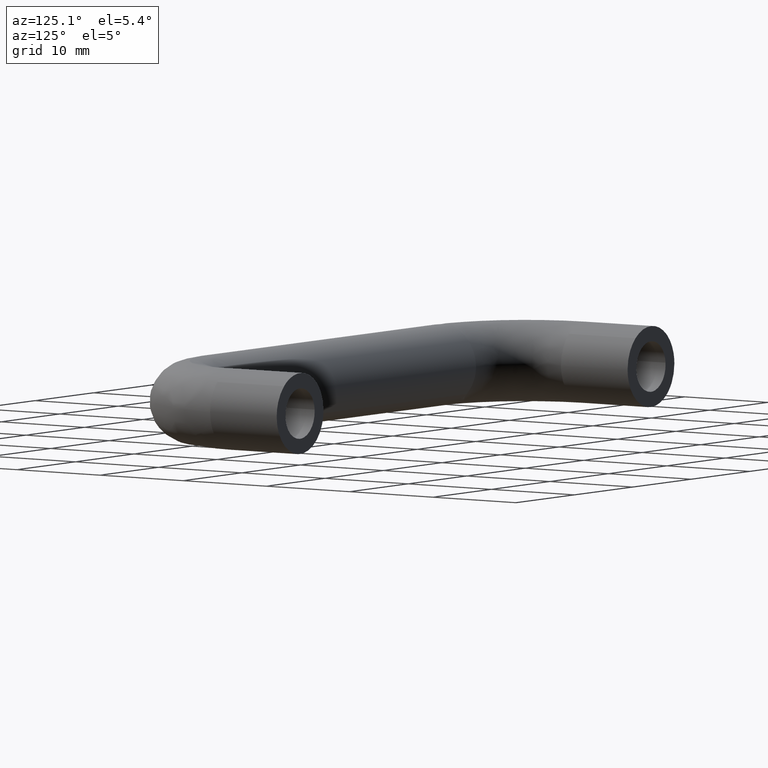
[diagram: clean part render]
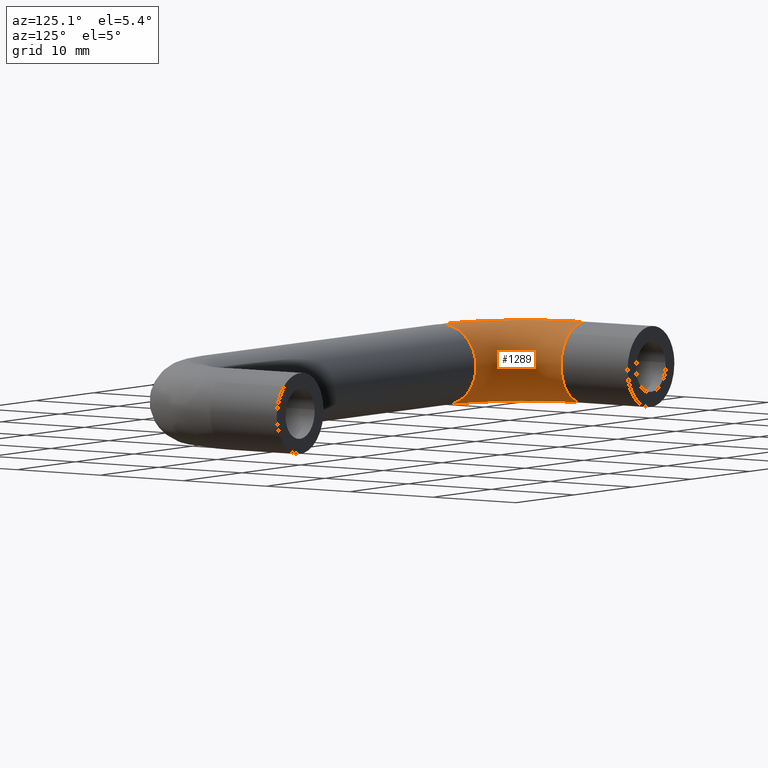
[diagram: same view with one face highlighted and labeled with its STEP entity id]
A machine part, auxiliary view. The second image highlights one B-rep face of the part: STEP entity #1289.
In plain terms, the highlighted face is a freeform B-spline surface patch.
Its self-contained STEP definition (entity closure, byte-faithful):
#659=CARTESIAN_POINT('',(9.999999999928459,-15.085144783316510,-2.739273455781886));
#660=VERTEX_POINT('',#659);
#666=CARTESIAN_POINT('',(10.0,-14.0,0.0));
#667=VERTEX_POINT('',#666);
#668=CARTESIAN_POINT('',(9.999999999928459,-15.085144783316512,-2.739273455781886));
#669=CARTESIAN_POINT('',(10.0,-14.000000000000004,-1.584572749257046));
#670=CARTESIAN_POINT('',(10.0,-14.0,0.0));
#678=(BOUNDED_CURVE()B_SPLINE_CURVE(2,(#668,#669,#670),.UNSPECIFIED.,.F.,.U.)B_SPLINE_CURVE_WITH_KNOTS((3,3),(0.379684541569276,0.500000000000000),.UNSPECIFIED.)CURVE()GEOMETRIC_REPRESENTATION_ITEM()RATIONAL_B_SPLINE_CURVE((0.853759071268494,0.859041672428836,1.0))REPRESENTATION_ITEM(''));
#679=EDGE_CURVE('',#660,#667,#678,.T.);
#681=CARTESIAN_POINT('',(9.999999999977183,-18.050264159744199,3.999684176812615));
#682=VERTEX_POINT('',#681);
#683=CARTESIAN_POINT('',(10.0,-14.0,0.0));
#684=CARTESIAN_POINT('',(10.000000000000002,-13.999999999999998,4.000000000000000));
#685=CARTESIAN_POINT('',(10.0,-18.0,4.0));
#686=CARTESIAN_POINT('',(10.0,-18.025133072178356,4.0));
#687=CARTESIAN_POINT('',(9.999999999977183,-18.050264159744195,3.999684176812615));
#695=(BOUNDED_CURVE()B_SPLINE_CURVE(2,(#683,#684,#685,#686,#687),.UNSPECIFIED.,.F.,.U.)B_SPLINE_CURVE_WITH_KNOTS((3,2,3),(0.500000000000000,0.750000000000000,0.752215704096808),.UNSPECIFIED.)CURVE()GEOMETRIC_REPRESENTATION_ITEM()RATIONAL_B_SPLINE_CURVE((1.0,0.707106781186548,1.0,0.997404141180592,0.994854295601350))REPRESENTATION_ITEM(''));
#696=EDGE_CURVE('',#667,#682,#695,.T.);
#832=CARTESIAN_POINT('',(9.999999999754682,-17.721066993419509,-3.990262695342246));
#833=VERTEX_POINT('',#832);
#849=CARTESIAN_POINT('',(9.999999999754682,-17.721066993419505,-3.990262695342246));
#850=CARTESIAN_POINT('',(9.999999999857723,-16.158102708519760,-3.881006147368181));
#851=CARTESIAN_POINT('',(9.999999999928459,-15.085144783316508,-2.739273455781886));
#859=(BOUNDED_CURVE()B_SPLINE_CURVE(2,(#849,#850,#851),.UNSPECIFIED.,.F.,.U.)B_SPLINE_CURVE_WITH_KNOTS((3,3),(0.262166313488892,0.379684541569276),.UNSPECIFIED.)CURVE()GEOMETRIC_REPRESENTATION_ITEM()RATIONAL_B_SPLINE_CURVE((0.972879876336249,0.848599286016326,0.853759071268495))REPRESENTATION_ITEM(''));
#860=EDGE_CURVE('',#833,#660,#859,.T.);
#884=CARTESIAN_POINT('',(2.635878256833538,-8.0,3.008678416705945));
#885=VERTEX_POINT('',#884);
#886=CARTESIAN_POINT('',(-0.050264161491411,-8.000000000482695,3.999684176790658));
#887=VERTEX_POINT('',#886);
#888=CARTESIAN_POINT('',(2.635878256833538,-8.0,3.008678416705945));
#889=CARTESIAN_POINT('',(1.504351067536320,-8.0,4.000000000000000));
#890=CARTESIAN_POINT('',(9.796851E-016,-8.0,4.0));
#891=CARTESIAN_POINT('',(-0.025133073925801,-8.0,4.000000000000001));
#892=CARTESIAN_POINT('',(-0.050264161491411,-8.000000000482695,3.999684176790658));
#900=(BOUNDED_CURVE()B_SPLINE_CURVE(2,(#888,#889,#890,#891,#892),.UNSPECIFIED.,.F.,.U.)B_SPLINE_CURVE_WITH_KNOTS((3,2,3),(0.634954723269971,0.750000000000000,0.752215704250460),.UNSPECIFIED.)CURVE()GEOMETRIC_REPRESENTATION_ITEM()RATIONAL_B_SPLINE_CURVE((0.854482180908901,0.865216074357030,1.0,0.997404141000576,0.994854295247701))REPRESENTATION_ITEM(''));
#901=EDGE_CURVE('',#885,#887,#900,.T.);
#1002=CARTESIAN_POINT('',(4.000000000000001,-8.0,0.0));
#1003=VERTEX_POINT('',#1002);
#1004=CARTESIAN_POINT('',(4.000000000000001,-8.0,0.0));
#1005=CARTESIAN_POINT('',(4.000000000000001,-8.0,1.813582674391952));
#1006=CARTESIAN_POINT('',(2.635878256833538,-8.0,3.008678416705946));
#1014=(BOUNDED_CURVE()B_SPLINE_CURVE(2,(#1004,#1005,#1006),.UNSPECIFIED.,.F.,.U.)B_SPLINE_CURVE_WITH_KNOTS((3,3),(0.500000000000000,0.634954723269971),.UNSPECIFIED.)CURVE()GEOMETRIC_REPRESENTATION_ITEM()RATIONAL_B_SPLINE_CURVE((1.0,0.841890706829518,0.854482180908901))REPRESENTATION_ITEM(''));
#1015=EDGE_CURVE('',#1003,#885,#1014,.T.);
#1017=CARTESIAN_POINT('',(0.278927085149124,-7.999992841993045,-3.990263109262084));
#1018=VERTEX_POINT('',#1017);
#1019=CARTESIAN_POINT('',(0.278927085149124,-7.999992841993045,-3.990263109262085));
#1020=CARTESIAN_POINT('',(3.999999999999860,-7.999996420996522,-3.730152937742459));
#1021=CARTESIAN_POINT('',(4.000000000000001,-8.0,0.0));
#1029=(BOUNDED_CURVE()B_SPLINE_CURVE(2,(#1019,#1020,#1021),.UNSPECIFIED.,.F.,.U.)B_SPLINE_CURVE_WITH_KNOTS((3,3),(0.262166058259925,0.500000000000000),.UNSPECIFIED.)CURVE()GEOMETRIC_REPRESENTATION_ITEM()RATIONAL_B_SPLINE_CURVE((0.972880416168121,0.721360205042633,1.0))REPRESENTATION_ITEM(''));
#1030=EDGE_CURVE('',#1018,#1003,#1029,.T.);
#1218=CARTESIAN_POINT('',(-0.050264161491411,-8.000000000482695,3.999684176790658));
#1219=CARTESIAN_POINT('',(-0.050264158568014,-18.050264159487760,3.999684176815263));
#1220=CARTESIAN_POINT('',(9.999999999977183,-18.050264159744199,3.999684176812615));
#1228=(BOUNDED_CURVE()B_SPLINE_CURVE(2,(#1218,#1219,#1220),.UNSPECIFIED.,.F.,.U.)B_SPLINE_CURVE_WITH_KNOTS((3,3),(-1.744561813214446,-0.255438186689191),.UNSPECIFIED.)CURVE()GEOMETRIC_REPRESENTATION_ITEM()RATIONAL_B_SPLINE_CURVE((0.894678510006817,0.632633241451508,0.894678510040732))REPRESENTATION_ITEM(''));
#1229=EDGE_CURVE('',#887,#682,#1228,.T.);
#1234=CARTESIAN_POINT('',(0.278927085149124,-7.999992841993045,-3.990263109262084));
#1235=CARTESIAN_POINT('',(0.278922887841558,-17.721066993066049,-3.990262902302166));
#1236=CARTESIAN_POINT('',(9.999999999754682,-17.721066993419505,-3.990262695342245));
#1244=(BOUNDED_CURVE()B_SPLINE_CURVE(2,(#1234,#1235,#1236),.UNSPECIFIED.,.F.,.U.)B_SPLINE_CURVE_WITH_KNOTS((3,3),(-1.744562588658354,-0.255438186737555),.UNSPECIFIED.)CURVE()GEOMETRIC_REPRESENTATION_ITEM()RATIONAL_B_SPLINE_CURVE((0.874553700153646,0.618402529915441,0.874553433394918))REPRESENTATION_ITEM(''));
#1245=EDGE_CURVE('',#1018,#833,#1244,.T.);
#1250=CARTESIAN_POINT('',(-0.080918568354458,-7.297292796973479,3.998991527033293));
#1251=CARTESIAN_POINT('',(-0.888932542027782,-18.888924468900200,3.998991527033294));
#1252=CARTESIAN_POINT('',(10.702699728962964,-18.080919089343713,3.998991527033292));
#1253=CARTESIAN_POINT('',(-0.053505754323042,-7.299203652789294,3.999336860694050));
#1254=CARTESIAN_POINT('',(-0.859322513859093,-18.859314462684591,3.999336860694049));
#1255=CARTESIAN_POINT('',(10.700788893471199,-18.053506273895586,3.999336860694049));
#1256=CARTESIAN_POINT('',(3.964066604357523,-7.579255219120508,4.049948336348670));
#1257=CARTESIAN_POINT('',(3.480269567929651,-14.519725598298511,4.049948336348671));
#1258=CARTESIAN_POINT('',(10.420740305796246,-14.035933707583936,4.049948336348670));
#1259=CARTESIAN_POINT('',(4.014209089871003,-7.582750484508186,0.050264159533408));
#1260=CARTESIAN_POINT('',(3.534431114672013,-14.465564091711876,0.050264159533408));
#1261=CARTESIAN_POINT('',(10.417245077584553,-13.985791219479049,0.050264159533408));
#1262=CARTESIAN_POINT('',(4.061561318550832,-7.586051250400407,-3.726851351358789));
#1263=CARTESIAN_POINT('',(3.585578757648511,-14.414416486656586,-3.726851351358791));
#1264=CARTESIAN_POINT('',(10.413944346799605,-13.938438988352024,-3.726851351358790));
#1265=CARTESIAN_POINT('',(0.274318848765906,-7.322055212233793,-3.992234961535434));
#1266=CARTESIAN_POINT('',(-0.505221846896234,-18.505214058254346,-3.992234961535432));
#1267=CARTESIAN_POINT('',(10.677937577078152,-17.725681653864413,-3.992234961535432));
#1268=CARTESIAN_POINT('',(0.246324258022713,-7.320103802704232,-3.994196627738777));
#1269=CARTESIAN_POINT('',(-0.535460282816271,-18.535452471755416,-3.994196627738777));
#1270=CARTESIAN_POINT('',(10.679888965852330,-17.753676246054390,-3.994196627738777));
#1278=(BOUNDED_SURFACE()B_SPLINE_SURFACE(2,2,((#1250,#1253,#1256,#1259,#1262,#1265,#1268),(#1251,#1254,#1257,#1260,#1263,#1266,#1269),(#1252,#1255,#1258,#1261,#1264,#1267,#1270)),.UNSPECIFIED.,.F.,.F.,.U.)B_SPLINE_SURFACE_WITH_KNOTS((3,3),(3,1,2,1,3),(0.0,18.415792858356699),(0.0,0.064948721421819,6.692365719391337,13.054686037442080,13.119641554137910),.UNSPECIFIED.)GEOMETRIC_REPRESENTATION_ITEM()RATIONAL_B_SPLINE_SURFACE(((0.927458650663563,0.924811710327573,0.652068962232381,0.922164769991582,0.662872794542749,0.903856851846555,0.906292291737435),(0.608621111552367,0.606884124390351,0.427903644349782,0.605147137228335,0.434993384064924,0.593133032358361,0.594731227741461),(0.927458337386277,0.924811397944371,0.652068741976314,0.922164458502465,0.662872570637360,0.903856546541493,0.906291985609728)))REPRESENTATION_ITEM('')SURFACE());
#1279=ORIENTED_EDGE('',*,*,#679,.F.);
#1280=ORIENTED_EDGE('',*,*,#860,.F.);
#1281=ORIENTED_EDGE('',*,*,#1245,.F.);
#1282=ORIENTED_EDGE('',*,*,#1030,.T.);
#1283=ORIENTED_EDGE('',*,*,#1015,.T.);
#1284=ORIENTED_EDGE('',*,*,#901,.T.);
#1285=ORIENTED_EDGE('',*,*,#1229,.T.);
#1286=ORIENTED_EDGE('',*,*,#696,.F.);
#1287=EDGE_LOOP('',(#1279,#1280,#1281,#1282,#1283,#1284,#1285,#1286));
#1288=FACE_OUTER_BOUND('',#1287,.T.);
#1289=ADVANCED_FACE('',(#1288),#1278,.T.);